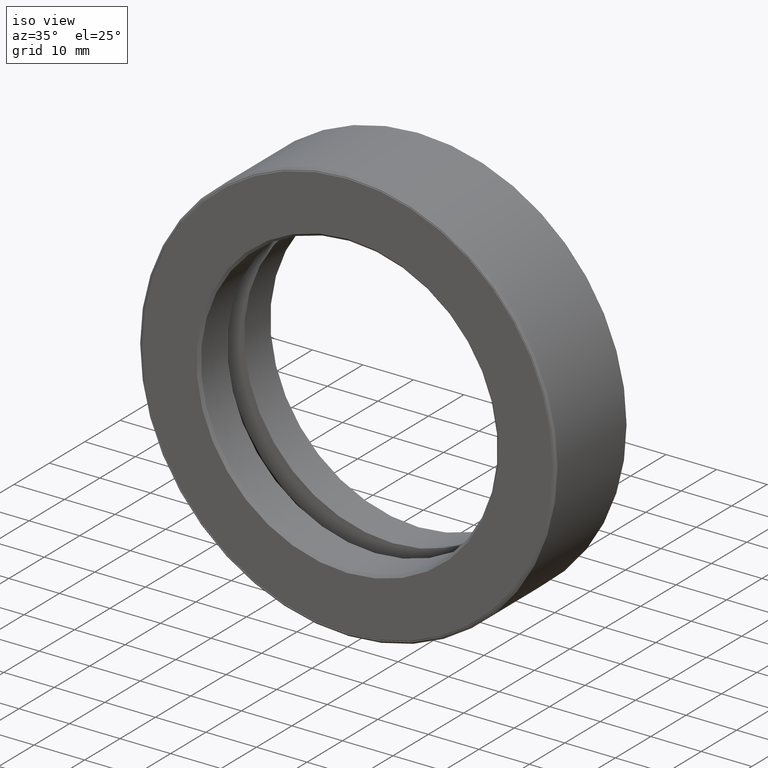
[diagram: clean part render]
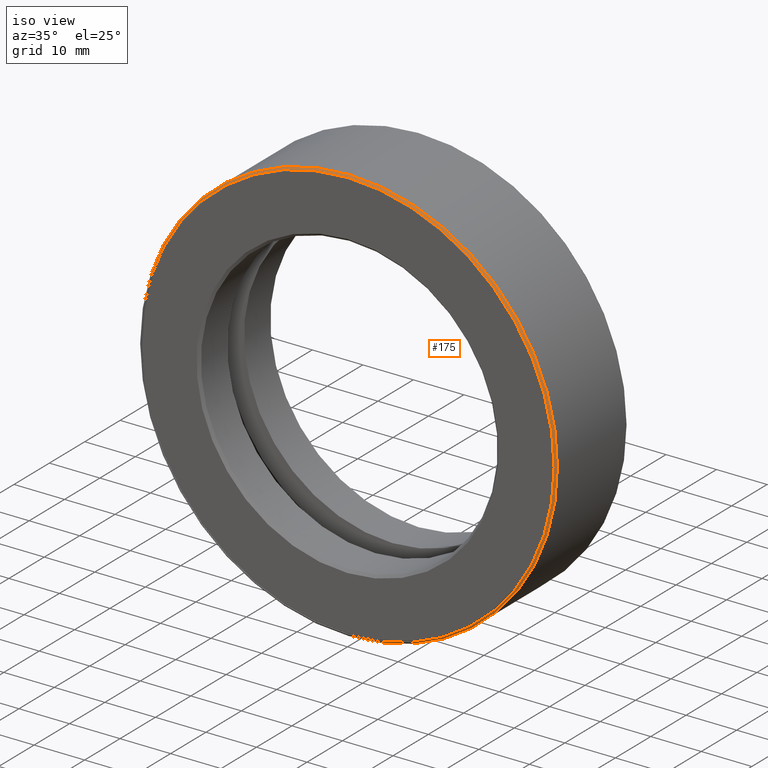
[diagram: same view with one face highlighted and labeled with its STEP entity id]
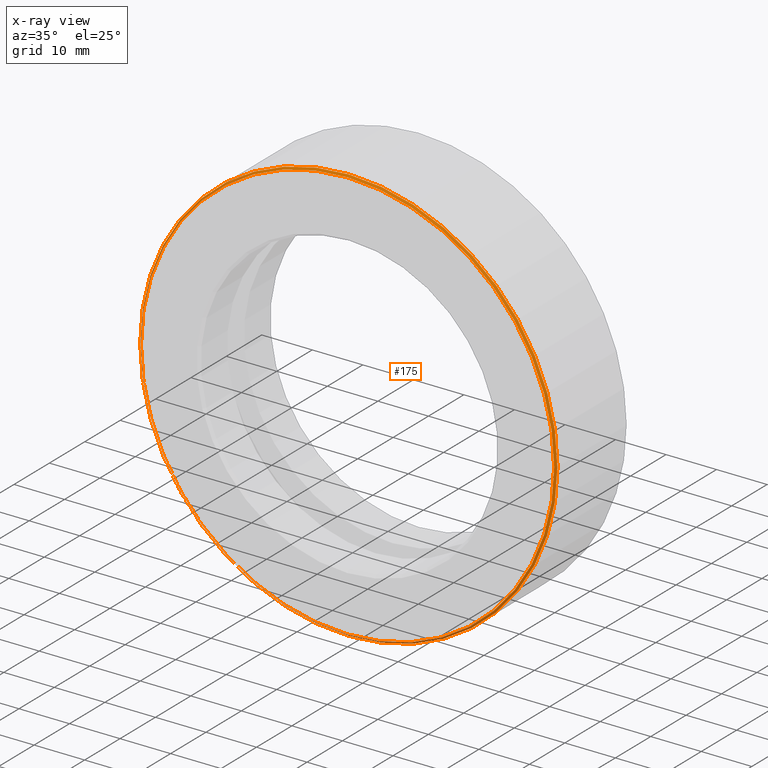
[diagram: x-ray of the same camera — body ghosted, the highlighted face saturated]
A machine part, iso view. The second image highlights one B-rep face of the part: STEP entity #175.
The next image is the same camera in x-ray: the body ghosted, the highlighted face saturated — about 0% of this face is hidden behind the body in this view.
In plain terms, the highlighted conical surface has half-angle 45 deg.
Its self-contained STEP definition (entity closure, byte-faithful):
#25 = FACE_OUTER_BOUND ( 'NONE', #102, .T. ) ;
#37 = FACE_BOUND ( 'NONE', #96, .T. ) ;
#55 = CONICAL_SURFACE ( 'NONE', #125, 1.610000000000000100, 0.7853981633974362900 ) ;
#96 = EDGE_LOOP ( 'NONE', ( #542 ) ) ;
#102 = EDGE_LOOP ( 'NONE', ( #177 ) ) ;
#121 = CIRCLE ( 'NONE', #249, 1.624999999999999800 ) ;
#125 = AXIS2_PLACEMENT_3D ( 'NONE', #379, #247, #478 ) ;
#135 = VERTEX_POINT ( 'NONE', #449 ) ;
#138 = AXIS2_PLACEMENT_3D ( 'NONE', #575, #158, #428 ) ;
#158 = DIRECTION ( 'NONE',  ( -0.0000000000000000000, 1.000000000000000000, -0.0000000000000000000 ) ) ;
#175 = ADVANCED_FACE ( 'NONE', ( #25, #37 ), #55, .T. ) ;
#176 = CARTESIAN_POINT ( 'NONE',  ( 0.0000000000000000000, 0.01499999999999997700, 1.624999999999999800 ) ) ;
#177 = ORIENTED_EDGE ( 'NONE', *, *, #483, .F. ) ;
#179 = CIRCLE ( 'NONE', #138, 1.610000000000000100 ) ;
#203 = DIRECTION ( 'NONE',  ( -0.0000000000000000000, 1.000000000000000000, -0.0000000000000000000 ) ) ;
#247 = DIRECTION ( 'NONE',  ( -0.0000000000000000000, 1.000000000000000000, -0.0000000000000000000 ) ) ;
#249 = AXIS2_PLACEMENT_3D ( 'NONE', #343, #203, #437 ) ;
#343 = CARTESIAN_POINT ( 'NONE',  ( 0.0000000000000000000, 0.01499999999999997700, 0.0000000000000000000 ) ) ;
#379 = CARTESIAN_POINT ( 'NONE',  ( 0.0000000000000000000, -8.750450604705842700E-017, 0.0000000000000000000 ) ) ;
#411 = EDGE_CURVE ( 'NONE', #135, #135, #179, .T. ) ;
#416 = VERTEX_POINT ( 'NONE', #176 ) ;
#428 = DIRECTION ( 'NONE',  ( 0.0000000000000000000, 0.0000000000000000000, 1.000000000000000000 ) ) ;
#437 = DIRECTION ( 'NONE',  ( 0.0000000000000000000, 0.0000000000000000000, 1.000000000000000000 ) ) ;
#449 = CARTESIAN_POINT ( 'NONE',  ( 0.0000000000000000000, -8.750450604705842700E-017, 1.610000000000000100 ) ) ;
#478 = DIRECTION ( 'NONE',  ( 0.0000000000000000000, 0.0000000000000000000, 1.000000000000000000 ) ) ;
#483 = EDGE_CURVE ( 'NONE', #416, #416, #121, .T. ) ;
#542 = ORIENTED_EDGE ( 'NONE', *, *, #411, .T. ) ;
#575 = CARTESIAN_POINT ( 'NONE',  ( 0.0000000000000000000, -8.750450604705842700E-017, 0.0000000000000000000 ) ) ;